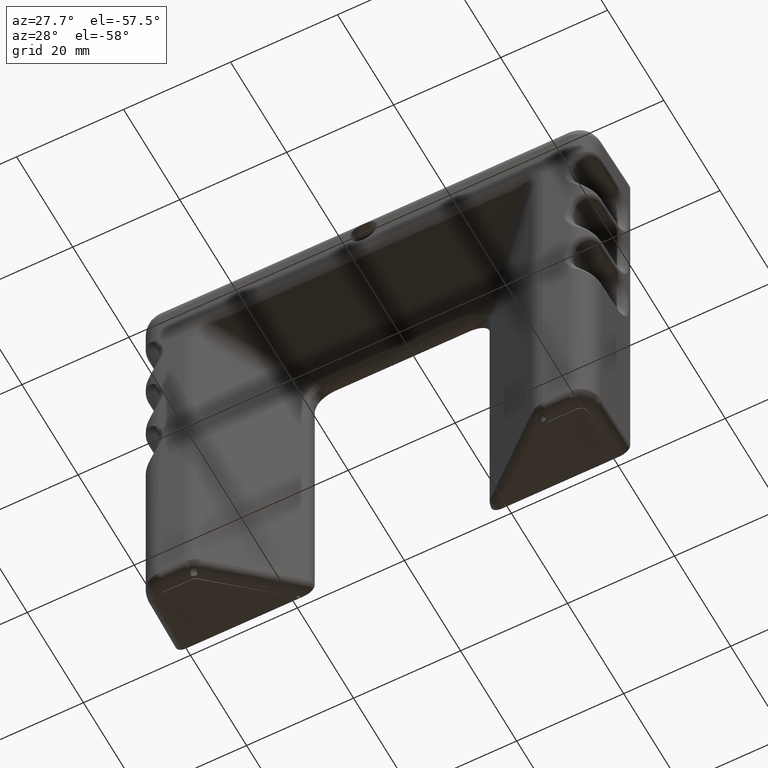
[diagram: clean part render]
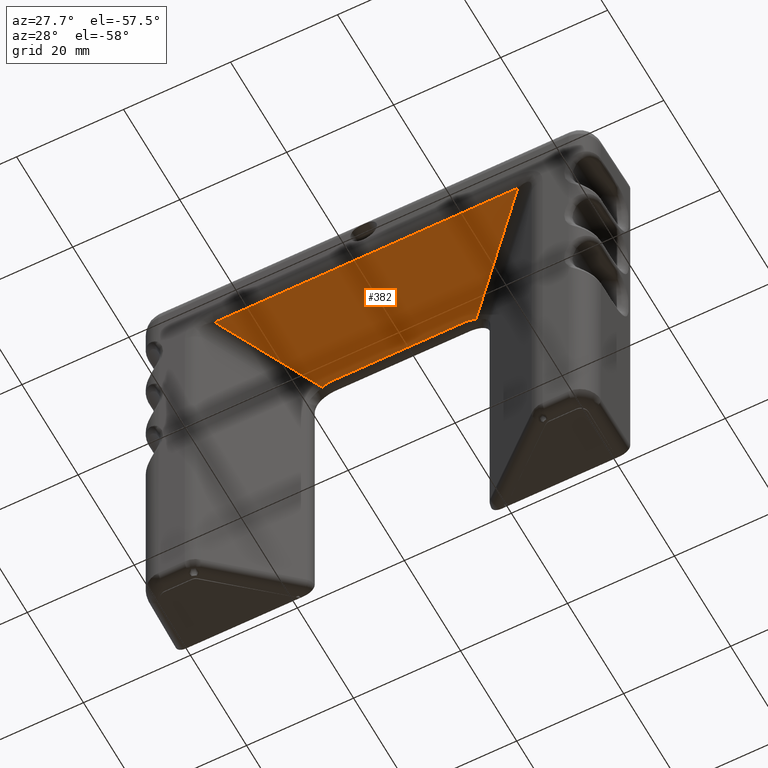
[diagram: same view with one face highlighted and labeled with its STEP entity id]
A machine part, auxiliary view. The second image highlights one B-rep face of the part: STEP entity #382.
In plain terms, the highlighted planar face has unit normal (0, -0.7662, -0.6426).
Its self-contained STEP definition (entity closure, byte-faithful):
#382=ADVANCED_FACE('',(#1677),#1676,.T.);
#1676=PLANE('',#7197);
#1677=FACE_OUTER_BOUND('',#7198,.T.);
#7194=CARTESIAN_POINT('',(-3.39773573586E+001,-1.47358528625E+001,1.57812091822E+001));
#7195=DIRECTION('',(0.00000000000E+000,-7.66191543126E-001,-6.42612261976E-001));
#7196=DIRECTION('',(0.00000000000E+000,6.42612261976E-001,-7.66191543126E-001));
#7197=AXIS2_PLACEMENT_3D('',#7194,#7195,#7196);
#7198=EDGE_LOOP('',(#8517,#8518,#8519,#8520,#8521,#8522));
#8517=ORIENTED_EDGE('',*,*,#9072,.F.);
#8518=ORIENTED_EDGE('',*,*,#9075,.T.);
#8519=ORIENTED_EDGE('',*,*,#9245,.F.);
#8520=ORIENTED_EDGE('',*,*,#9256,.F.);
#8521=ORIENTED_EDGE('',*,*,#9264,.F.);
#8522=ORIENTED_EDGE('',*,*,#9068,.T.);
#9068=EDGE_CURVE('',#10240,#10259,#10267,.T.);
#9072=EDGE_CURVE('',#10287,#10259,#10294,.T.);
#9075=EDGE_CURVE('',#10287,#10307,#10314,.T.);
#9245=EDGE_CURVE('',#11446,#10307,#11447,.T.);
#9256=EDGE_CURVE('',#11513,#11446,#11520,.T.);
#9264=EDGE_CURVE('',#10240,#11513,#11570,.T.);
#10240=VERTEX_POINT('',#13532);
#10259=VERTEX_POINT('',#13546);
#10267=(BOUNDED_CURVE() B_SPLINE_CURVE(2,(#13552,#13553,#13554),.UNSPECIFIED.,.F.,.F.) B_SPLINE_CURVE_WITH_KNOTS((3,3),(0.00000000000E+000,1.00000000000E+000),.UNSPECIFIED.) CURVE() GEOMETRIC_REPRESENTATION_ITEM() RATIONAL_B_SPLINE_CURVE((1.00000000000E+000,9.87723871208E-001,1.00000000000E+000)) REPRESENTATION_ITEM('') );
#10287=VERTEX_POINT('',#13564);
#10294=LINE('',#13569,#13570);
#10307=VERTEX_POINT('',#13576);
#10314=(BOUNDED_CURVE() B_SPLINE_CURVE(2,(#13581,#13582,#13583),.UNSPECIFIED.,.F.,.F.) B_SPLINE_CURVE_WITH_KNOTS((3,3),(0.00000000000E+000,1.00000000000E+000),.UNSPECIFIED.) CURVE() GEOMETRIC_REPRESENTATION_ITEM() RATIONAL_B_SPLINE_CURVE((1.00000000000E+000,9.87723871208E-001,1.00000000000E+000)) REPRESENTATION_ITEM('') );
#11446=VERTEX_POINT('',#14581);
#11447=LINE('',#14582,#14583);
#11513=VERTEX_POINT('',#14621);
#11520=LINE('',#14626,#14627);
#11570=LINE('',#14653,#14654);
#13532=CARTESIAN_POINT('',(-1.43515077772E+001,-1.85389927268E+000,4.21956825107E-001));
#13546=CARTESIAN_POINT('',(-1.25000000000E+001,-2.09948910895E+000,7.14775476048E-001));
#13552=CARTESIAN_POINT('',(-1.43515077772E+001,-1.85389927267E+000,4.21956825105E-001));
#13553=CARTESIAN_POINT('',(-1.34489087366E+001,-2.09948910895E+000,7.14775476048E-001));
#13554=CARTESIAN_POINT('',(-1.25000000000E+001,-2.09948910895E+000,7.14775476048E-001));
#13564=CARTESIAN_POINT('',(1.25000000001E+001,-2.09948910895E+000,7.14775476048E-001));
#13569=CARTESIAN_POINT('',(1.25000000001E+001,-2.09948910895E+000,7.14775476048E-001));
#13570=VECTOR('',#13571,2.50000000001E+001);
#13571=DIRECTION('',(-1.00000000000E+000,0.00000000000E+000,0.00000000000E+000));
#13576=CARTESIAN_POINT('',(1.43515077773E+001,-1.85389927268E+000,4.21956825107E-001));
#13581=CARTESIAN_POINT('',(1.25000000001E+001,-2.09948910895E+000,7.14775476048E-001));
#13582=CARTESIAN_POINT('',(1.34489087367E+001,-2.09948910895E+000,7.14775476048E-001));
#13583=CARTESIAN_POINT('',(1.43515077773E+001,-1.85389927267E+000,4.21956825105E-001));
#14581=CARTESIAN_POINT('',(2.83144644655E+001,-1.35647661725E+001,1.43849135134E+001));
#14582=CARTESIAN_POINT('',(2.83144644655E+001,-1.35647661725E+001,1.43849135134E+001));
#14583=VECTOR('',#14584,2.29580644329E+001);
#14584=DIRECTION('',(-6.08193984694E-001,5.10098180711E-001,-6.08193984694E-001));
#14621=CARTESIAN_POINT('',(-2.83144644655E+001,-1.35647661725E+001,1.43849135134E+001));
#14626=CARTESIAN_POINT('',(-2.83144644655E+001,-1.35647661725E+001,1.43849135134E+001));
#14627=VECTOR('',#14628,5.66289289310E+001);
#14628=DIRECTION('',(1.00000000000E+000,0.00000000000E+000,0.00000000000E+000));
#14653=CARTESIAN_POINT('',(-1.43515077772E+001,-1.85389927267E+000,4.21956825105E-001));
#14654=VECTOR('',#14655,2.29580644329E+001);
#14655=DIRECTION('',(-6.08193984694E-001,-5.10098180711E-001,6.08193984694E-001));